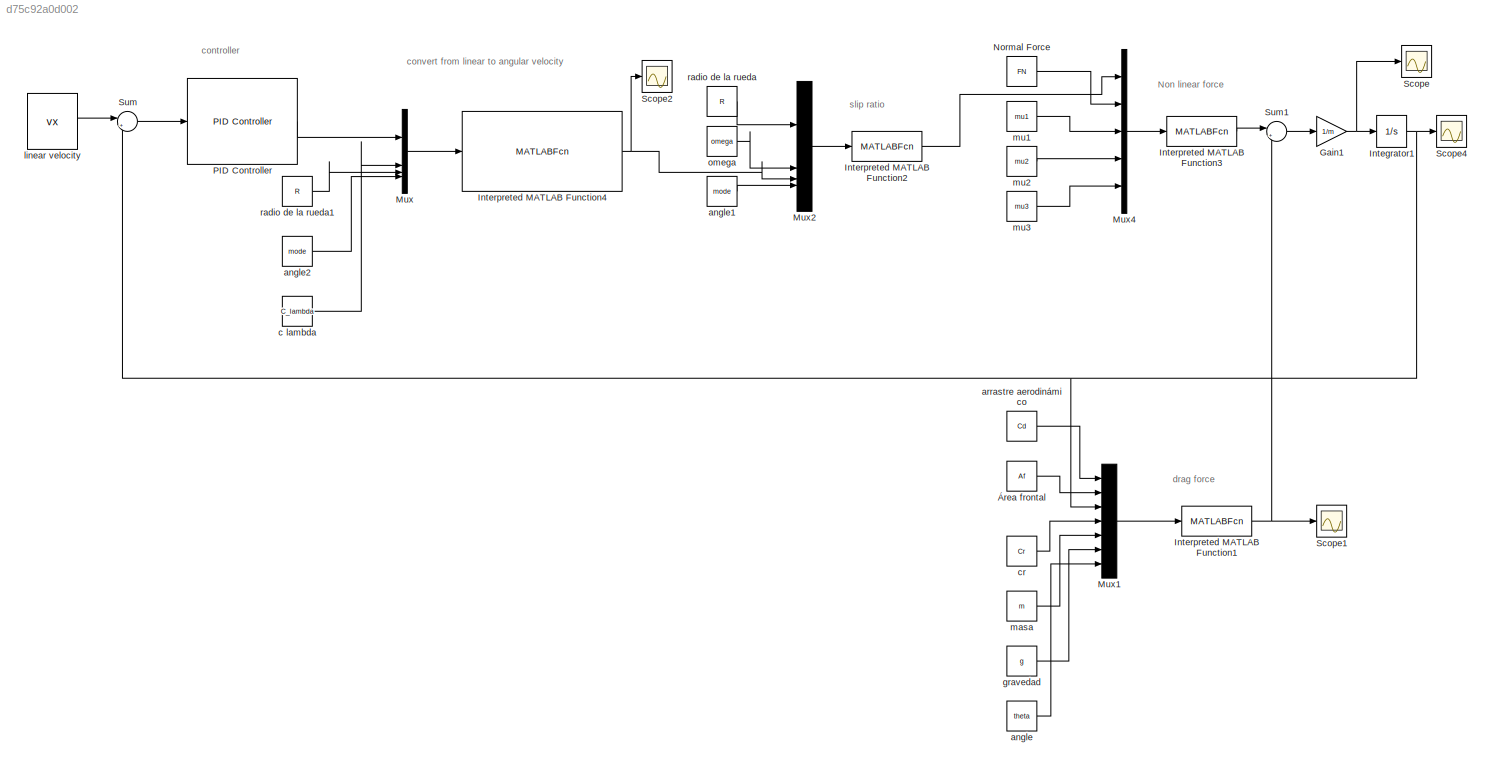
MODEL slx_d75c92a0d002
KIND model
CONFIG AbsTol = auto
CONFIG EnableMultiTasking = off
CONFIG FixedStep = 0.001
CONFIG MaxStep = auto
CONFIG MinStep = auto
CONFIG RelTol = 1e-3
CONFIG SampleTimeConstraint = Unconstrained
CONFIG SolverName = FixedStepAuto
CONFIG StartTime = 0.0
CONFIG StopTime = 10.0
BLOCK [Gain] Gain1
  Gain = 1/m
BLOCK [Integrator] Integrator1
  LowerSaturationLimit = 0
  UpperSaturationLimit = 50
BLOCK [MATLABFcn] Interpreted MATLAB Function1
  MATLABFcn = drag_force
  Output1D = off
  OutputDimensions = 1
BLOCK [MATLABFcn] Interpreted MATLAB Function2
  MATLABFcn = slip_ratio
  Output1D = off
BLOCK [MATLABFcn] Interpreted MATLAB Function3
  MATLABFcn = nonlinear_force
  Output1D = off
  OutputDimensions = 1
BLOCK [MATLABFcn] Interpreted MATLAB Function4
  MATLABFcn = convertlw
  Output1D = off
BLOCK [Mux] Mux
  DisplayOption = bar
BLOCK [Mux] Mux1
  DisplayOption = bar
  Inputs = 7
BLOCK [Mux] Mux2
  DisplayOption = bar
BLOCK [Mux] Mux4
  DisplayOption = bar
  Inputs = 5
BLOCK [Constant] Normal Force
  Value = FN
BLOCK [Reference] PID Controller  REF=slpidlib/PID Controller
  LibrarySourceBlock = simulink/Continuous/PID Controller
  SourceBlock = slpidlib/PID Controller
  SourceType = PID 1dof
BLOCK [Scope] Scope
  Floating = off
  NumInputPorts = 1
  ScopeSpecificationString = Simulink.scopes.TimeScopeBlockCfg('CurrentConfiguration', extmgr.ConfigurationSet(extmgr.Configuration('Core','General UI',true),extmgr.Configuration('Core','Source UI',true),extmgr.Configuration('Sources','WiredSimulink',true,'DataLoggingVariableName','ScopeData1'),extmgr.Configuration('Visuals','Time Domain',true,'SerializedDisplays',{struct('MinYLimReal','-57449896123127870849140897616496470517...<+2036ch>
BLOCK [Scope] Scope1
  Floating = off
  NumInputPorts = 1
  ScopeSpecificationString = Simulink.scopes.TimeScopeBlockCfg('CurrentConfiguration', extmgr.ConfigurationSet(extmgr.Configuration('Core','General UI',true),extmgr.Configuration('Core','Source UI',true),extmgr.Configuration('Sources','WiredSimulink',true,'DataLoggingVariableName','ScopeData2'),extmgr.Configuration('Visuals','Time Domain',true,'SerializedDisplays',{struct('MinYLimReal','-21924954896192652806267809011641059082...<+2689ch>
BLOCK [Scope] Scope2
  Floating = off
  NumInputPorts = 1
  ScopeSpecificationString = Simulink.scopes.TimeScopeBlockCfg('CurrentConfiguration', extmgr.ConfigurationSet(extmgr.Configuration('Core','General UI',true),extmgr.Configuration('Core','Source UI',true),extmgr.Configuration('Sources','WiredSimulink',true,'DataLoggingVariableName','ScopeData3'),extmgr.Configuration('Visuals','Time Domain',true,'SerializedDisplays',{struct('MinYLimReal','-1531915932.25','MaxYLimReal','-2215424...<+1549ch>
BLOCK [Scope] Scope4
  Floating = off
  NumInputPorts = 1
  ScopeSpecificationString = Simulink.scopes.TimeScopeBlockCfg('CurrentConfiguration', extmgr.ConfigurationSet(extmgr.Configuration('Core','General UI',true),extmgr.Configuration('Core','Source UI',true),extmgr.Configuration('Sources','WiredSimulink',true),extmgr.Configuration('Visuals','Time Domain',true,'SerializedDisplays',{struct('MinYLimReal','-34015310403514770331702713266418261908652163222915775450938306337235137608184...<+3508ch>
BLOCK [Sum] Sum
  Inputs = |+-
BLOCK [Sum] Sum1
  Inputs = |+-
BLOCK [Constant] angle
  Value = theta
  VectorParams1D = off
BLOCK [Constant] angle1
  Value = mode
BLOCK [Constant] angle2
  Value = mode
BLOCK [Constant] arrastre aerodinámico
  Value = Cd
  VectorParams1D = off
BLOCK [Constant] c lambda
  Value = C_lambda
BLOCK [Constant] cr
  Value = Cr
  VectorParams1D = off
BLOCK [Constant] gravedad
  Value = g
  VectorParams1D = off
BLOCK [Constant] linear velocity
  SampleTime = vx
  Value = vx
BLOCK [Constant] masa
  Value = m
  VectorParams1D = off
BLOCK [Constant] mu1
  Value = mu1
BLOCK [Constant] mu2
  Value = mu2
BLOCK [Constant] mu3
  Value = mu3
BLOCK [Constant] omega
  Value = omega
  VectorParams1D = off
BLOCK [Constant] radio de la rueda
  Value = R
  VectorParams1D = off
BLOCK [Constant] radio de la rueda1
  Value = R
  VectorParams1D = off
BLOCK [Constant] Área frontal
  Value = Af
  VectorParams1D = off
ANNOTATION (root): Non linear force
ANNOTATION (root): controller
ANNOTATION (root): convert from linear to angular velocity
ANNOTATION (root): drag force
ANNOTATION (root): slip ratio
NET Gain1:1 -> Integrator1:1, Scope:1
NET Integrator1:1 -> Mux1:3, Scope4:1, Sum:2
NET Interpreted MATLAB Function1:1 -> Scope1:1, Sum1:2
LINE Interpreted MATLAB Function2:1 -> Mux4:1
LINE Interpreted MATLAB Function3:1 -> Sum1:1
NET Interpreted MATLAB Function4:1 -> Mux2:3, Scope2:1
LINE Mux1:1 -> Interpreted MATLAB Function1:1
LINE Mux2:1 -> Interpreted MATLAB Function2:1
LINE Mux4:1 -> Interpreted MATLAB Function3:1
LINE Mux:1 -> Interpreted MATLAB Function4:1
LINE Normal Force:1 -> Mux4:2
LINE PID Controller:1 -> Mux:1
LINE Sum1:1 -> Gain1:1
LINE Sum:1 -> PID Controller:1
LINE angle1:1 -> Mux2:4
LINE angle2:1 -> Mux:4
LINE angle:1 -> Mux1:7
LINE arrastre aerodinámico:1 -> Mux1:1
LINE c lambda:1 -> Mux:2
LINE cr:1 -> Mux1:4
LINE gravedad:1 -> Mux1:6
LINE linear velocity:1 -> Sum:1
LINE masa:1 -> Mux1:5
LINE mu1:1 -> Mux4:3
LINE mu2:1 -> Mux4:4
LINE mu3:1 -> Mux4:5
LINE omega:1 -> Mux2:2
LINE radio de la rueda1:1 -> Mux:3
LINE radio de la rueda:1 -> Mux2:1
LINE Área frontal:1 -> Mux1:2
note: NET lines group one-source signal fan-out (src -> all destinations, sorted); 1:1 wires keep LINE
